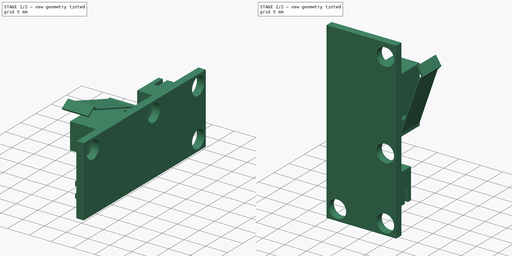
[diagram: build sequence overview — one tinted view per stage of 2, left to right]
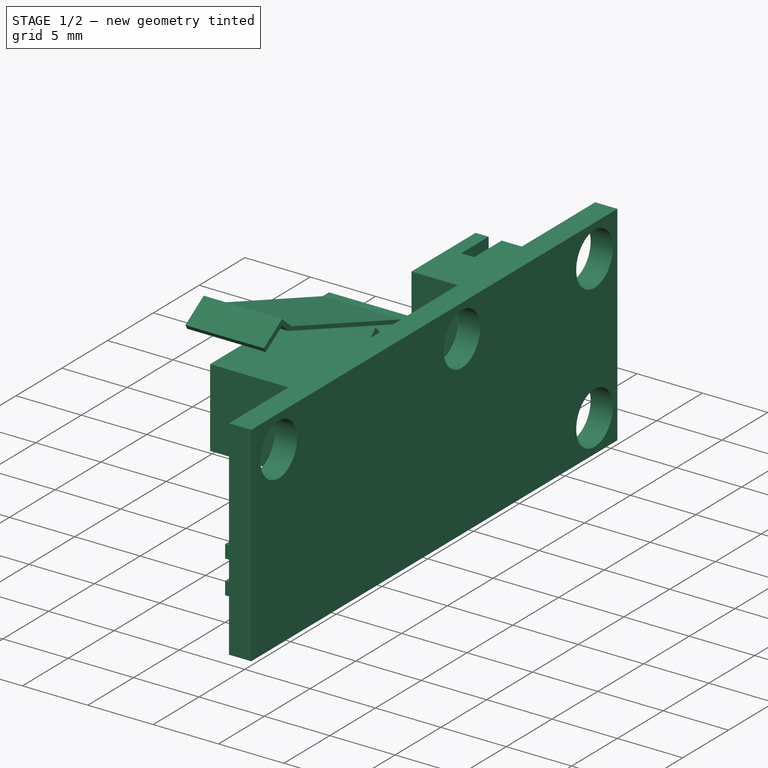
[diagram: stage 1 of 2 — iso view after this stage's code; geometry added in this stage tinted green]
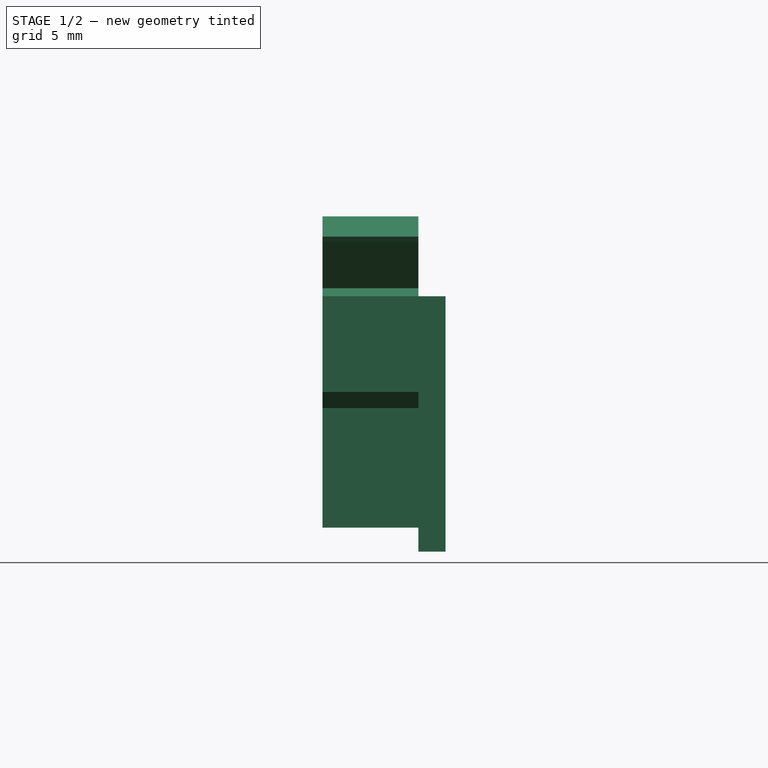
[diagram: stage 1 of 2 — front view after this stage's code; geometry added in this stage tinted green]
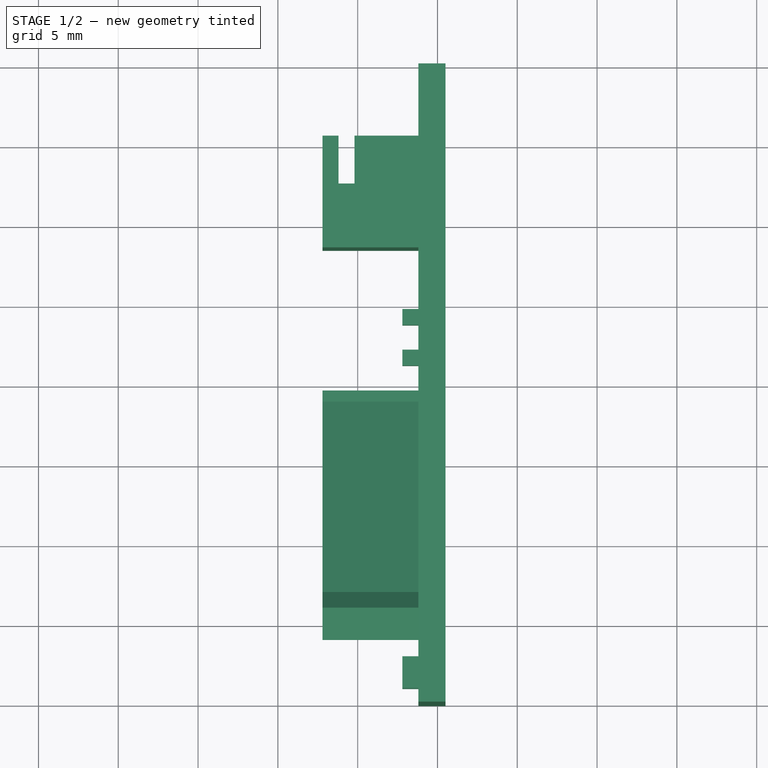
[diagram: stage 1 of 2 — top view after this stage's code; geometry added in this stage tinted green]
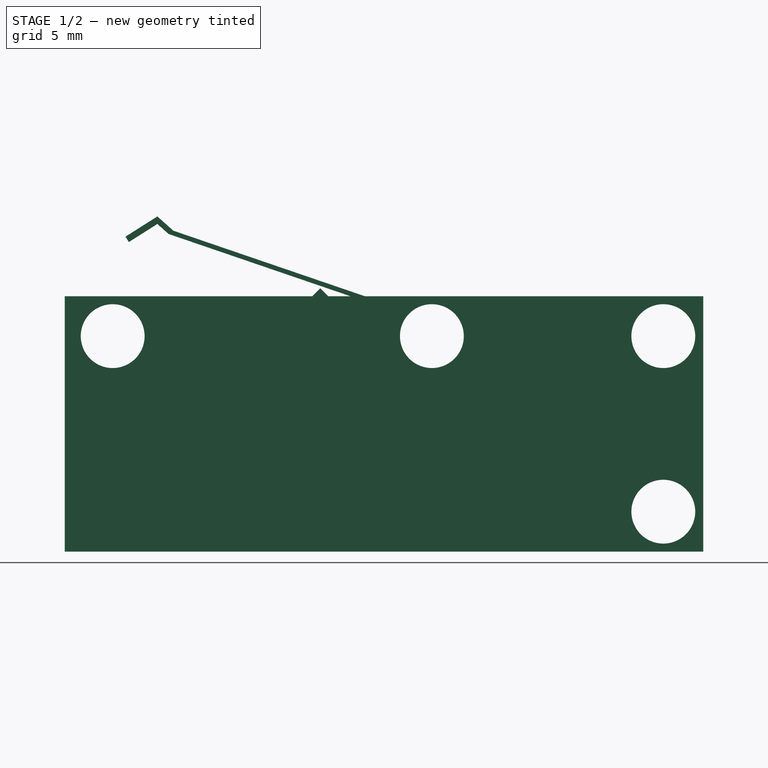
[diagram: stage 1 of 2 — right view after this stage's code; geometry added in this stage tinted green]
FCSTD DOCUMENT  (FreeCAD 0.19R23964 (Git))
Label: endstopswitch1b
License: All rights reserved
LicenseURL: http://en.wikipedia.org/wiki/All_rights_reserved
objects: Sketcher::SketchObject×1, PartDesign::Pad×1, Part::FeaturePython×1, Part::Compound×1
note: 5 computed .brp shape members not serialized (recipe doc carries the construction recipe); baked Part::Feature solids carry a one-line shape summary decoded from their .brp

FEATURE [Sketcher::SketchObject] Sketch008
  FullyConstrained = false
  MapMode = 5
  Placement = pos=(-9.5,0,0) rot=(0.57735,-0.57735,-0.57735;2.0944rad)
  sketch-geometry (16):
    g0: LineSegment StartX=-3.3 StartY=5.7 StartZ=0 EndX=-2.8 EndY=5.7 EndZ=0
    g1: LineSegment StartX=-2.8 StartY=5.7 StartZ=0 EndX=-2.8 EndY=5.2 EndZ=0
    g2: LineSegment StartX=-2.8 StartY=5.2 StartZ=0 EndX=-3.3 EndY=5.2 EndZ=0
    g3: LineSegment StartX=-3.3 StartY=5.2 StartZ=0 EndX=-3.3 EndY=5.7 EndZ=0
    g4: LineSegment StartX=-1.1 StartY=5.7 StartZ=0 EndX=-0.6 EndY=5.7 EndZ=0
    g5: LineSegment StartX=-0.6 StartY=5.7 StartZ=0 EndX=-0.6 EndY=5.2 EndZ=0
    g6: LineSegment StartX=-0.6 StartY=5.2 StartZ=0 EndX=-1.1 EndY=5.2 EndZ=0
    g7: LineSegment StartX=-1.1 StartY=5.2 StartZ=0 EndX=-1.1 EndY=5.7 EndZ=0
    g8: LineSegment StartX=1.1 StartY=5.7 StartZ=0 EndX=1.6 EndY=5.7 EndZ=0
    g9: LineSegment StartX=1.6 StartY=5.7 StartZ=0 EndX=1.6 EndY=5.2 EndZ=0
    g10: LineSegment StartX=1.6 StartY=5.2 StartZ=0 EndX=1.1 EndY=5.2 EndZ=0
    g11: LineSegment StartX=1.1 StartY=5.2 StartZ=0 EndX=1.1 EndY=5.7 EndZ=0
    g12: LineSegment StartX=3.3 StartY=5.7 StartZ=0 EndX=3.8 EndY=5.7 EndZ=0
    g13: LineSegment StartX=3.8 StartY=5.7 StartZ=0 EndX=3.8 EndY=5.2 EndZ=0
    g14: LineSegment StartX=3.8 StartY=5.2 StartZ=0 EndX=3.3 EndY=5.2 EndZ=0
    g15: LineSegment StartX=3.3 StartY=5.2 StartZ=0 EndX=3.3 EndY=5.7 EndZ=0
  constraints (43):
    c: Coincident(g0,g1)
    c: Coincident(g1,g2)
    c: Coincident(g2,g3)
    c: Coincident(g3,g0)
    c: Horizontal(g0)
    c: Horizontal(g2)
    c: Vertical(g1)
    c: Vertical(g3)
    c: Coincident(g4,g5)
    c: Coincident(g5,g6)
    c: Coincident(g6,g7)
    c: Coincident(g7,g4)
    c: Horizontal(g4)
    c: Horizontal(g6)
    c: Vertical(g5)
    c: Vertical(g7)
    c: Coincident(g8,g9)
    c: Coincident(g9,g10)
    c: Coincident(g10,g11)
    c: Coincident(g11,g8)
    c: Horizontal(g8)
    c: Horizontal(g10)
    c: Vertical(g9)
    c: Vertical(g11)
    c: Coincident(g12,g13)
    c: Coincident(g13,g14)
    c: Coincident(g14,g15)
    c: Coincident(g15,g12)
    c: Horizontal(g12)
    c: Horizontal(g14)
    c: Vertical(g13)
    c: Vertical(g15)
    c: Equal(g0,g4)
    c: Equal(g4,g8)
    c: Equal(g8,g12)
    c: Equal(g12,g15)
    c: Equal(g15,g11)
    c: Equal(g11,g7)
    c: Equal(g7,g3)
    c: DistanceX(g0,g0) = 0.5
    c: DistanceX(g0,g4) = 1.7
    c: DistanceX(g4,g8) = 1.7
    c: DistanceX(g8,g12) = 1.7
FEATURE [PartDesign::Pad] Pad003
  AllowMultiFace = false
  Direction = (1,1,1)
  Length = 5
  Length2 = 100
  Placement = pos=(-9.5,0,0) rot=(0.57735,-0.57735,-0.57735;2.0944rad)
  Profile = -> Sketch008
  Type = 0
FEATURE [Part::FeaturePython] refine  label="refine_Pad003"  # WARN: FeaturePython — macro-defined, semantics opaque (R4)
  Base = -> Pad003
  Visibility1 = true
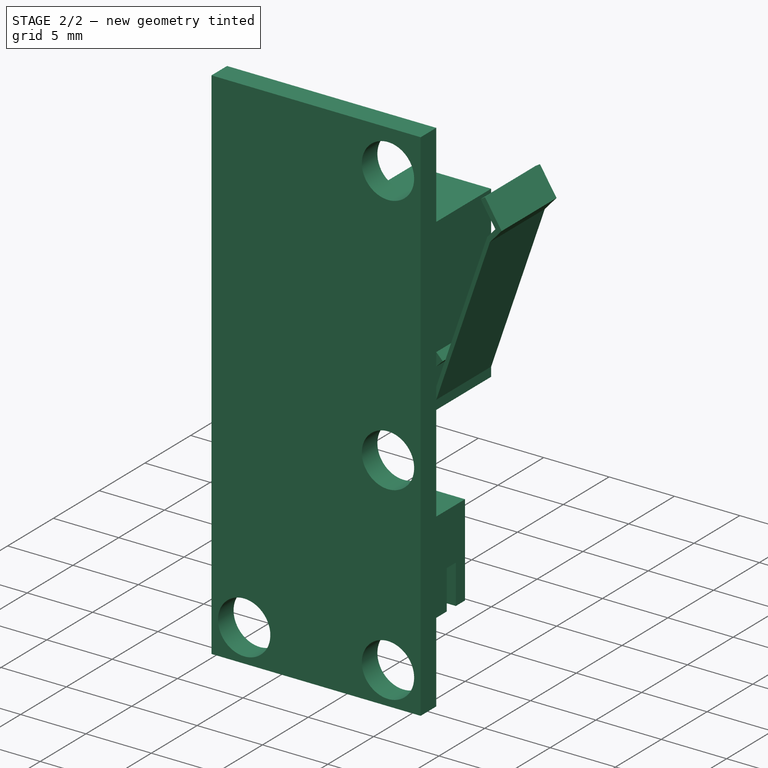
[diagram: stage 2 of 2 — iso view after this stage's code; geometry added in this stage tinted green]
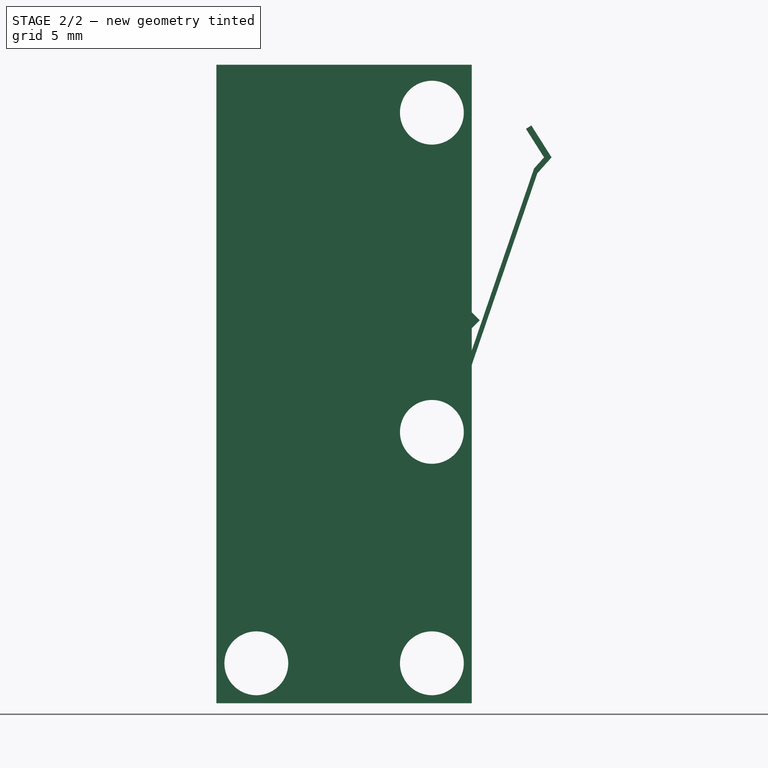
[diagram: stage 2 of 2 — front view after this stage's code; geometry added in this stage tinted green]
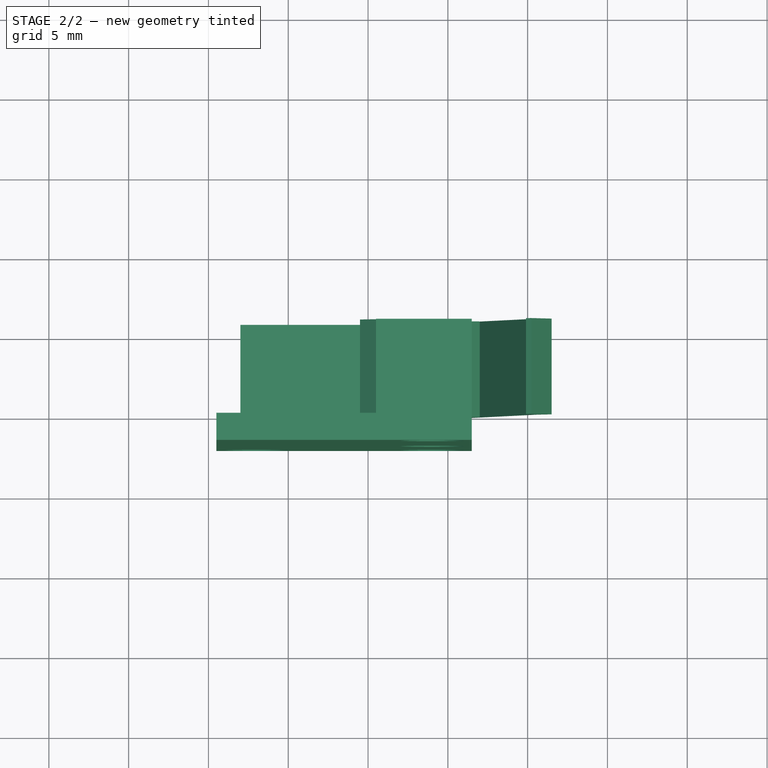
[diagram: stage 2 of 2 — top view after this stage's code; geometry added in this stage tinted green]
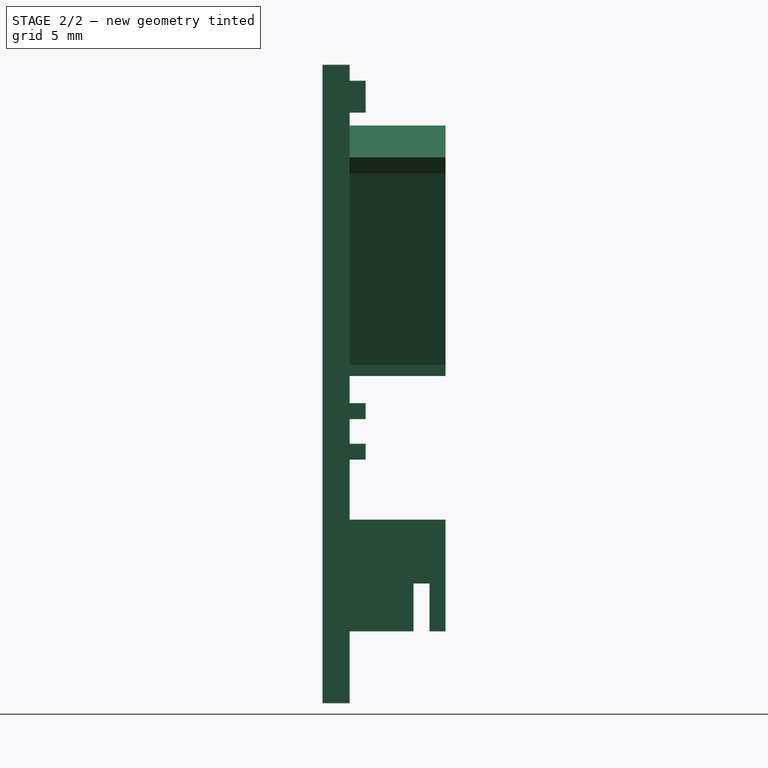
[diagram: stage 2 of 2 — right view after this stage's code; geometry added in this stage tinted green]
FEATURE [Part::Compound] Compound  label="endstopswitch_col"
  Links = -> [refine]
  Placement = pos=(13.5,43.5,6) rot=(0.57735,-0.57735,0.57735;4.18879rad)
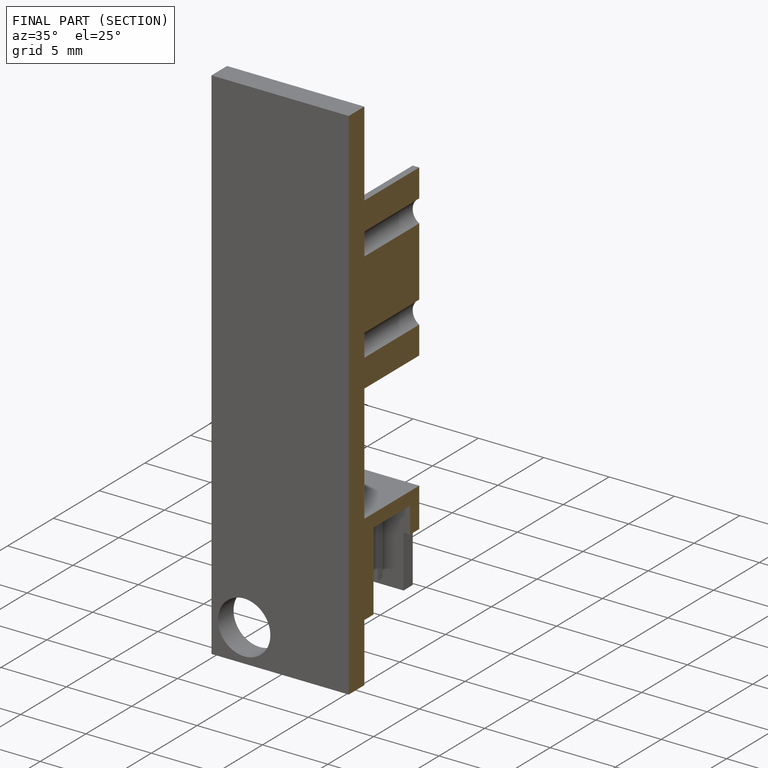
[diagram: finished part — half-section view (interior)]
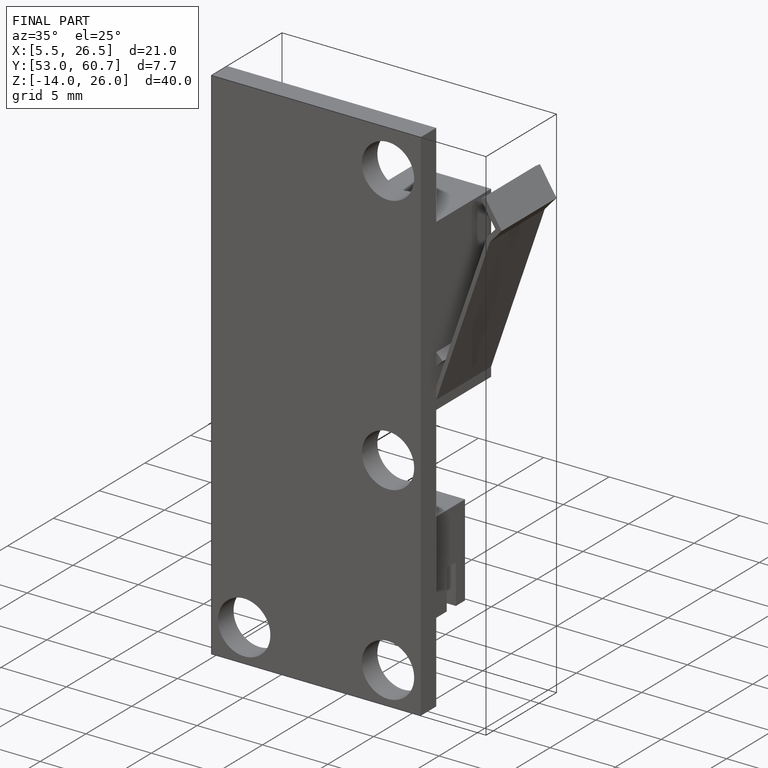
[diagram: finished part — iso view with bounding-box wireframe]
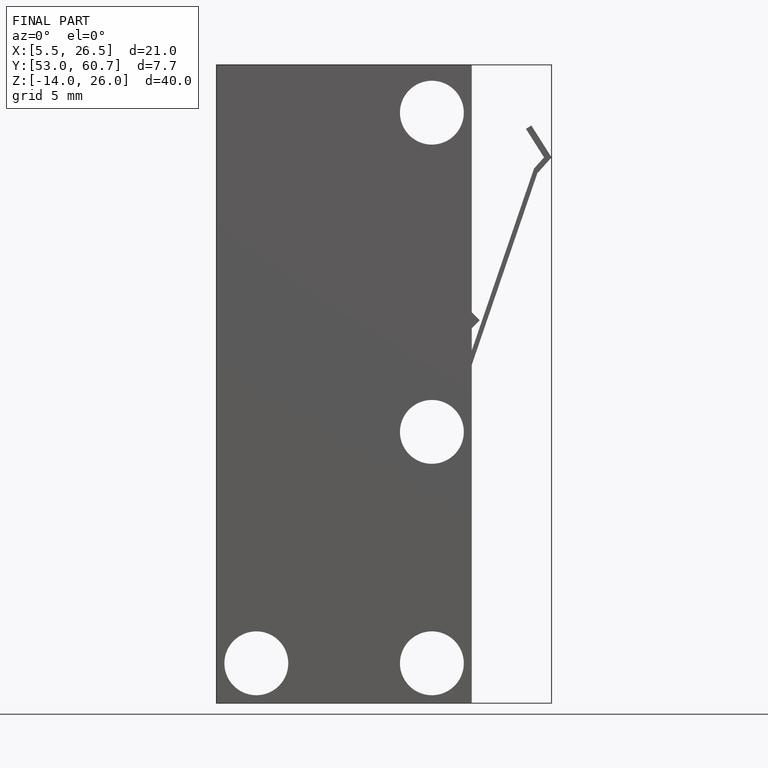
[diagram: finished part — front view with bounding-box wireframe]
